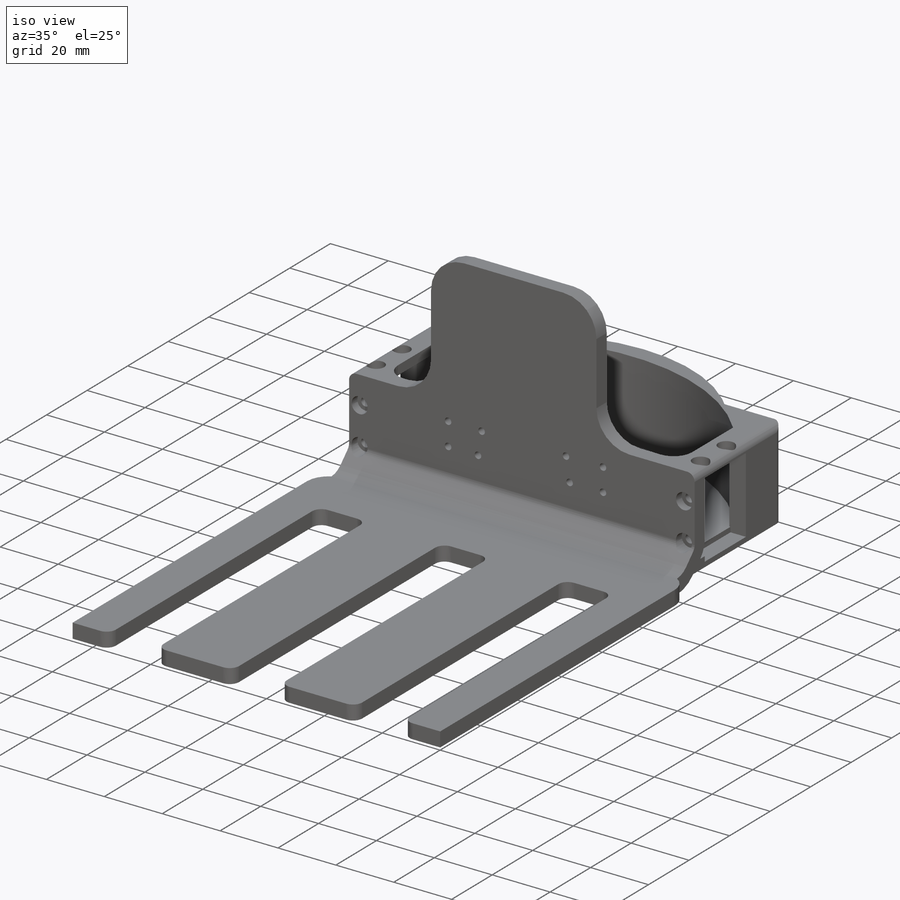
[diagram: iso view]
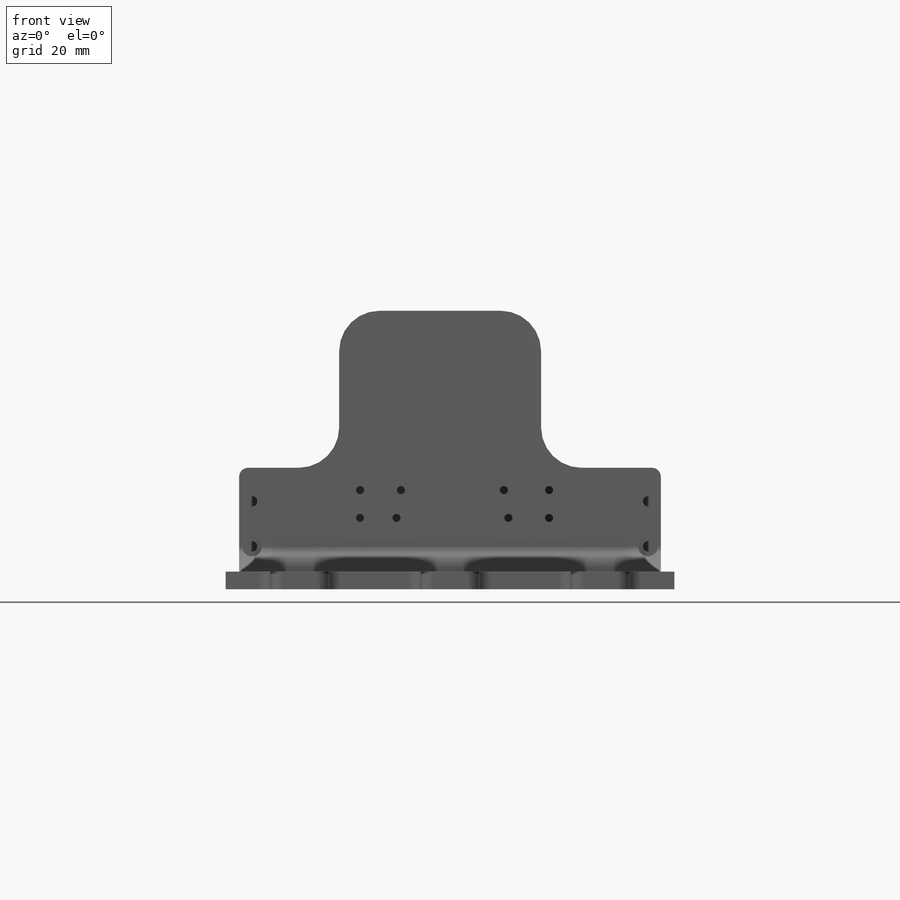
[diagram: front view]
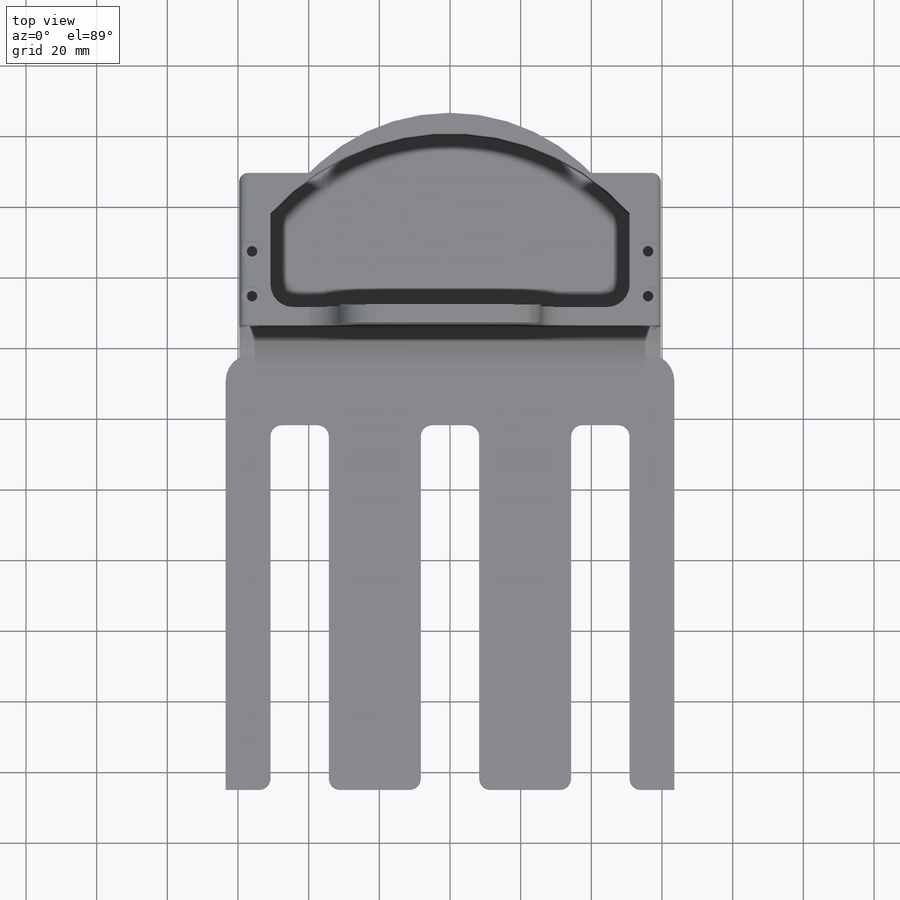
[diagram: top view]
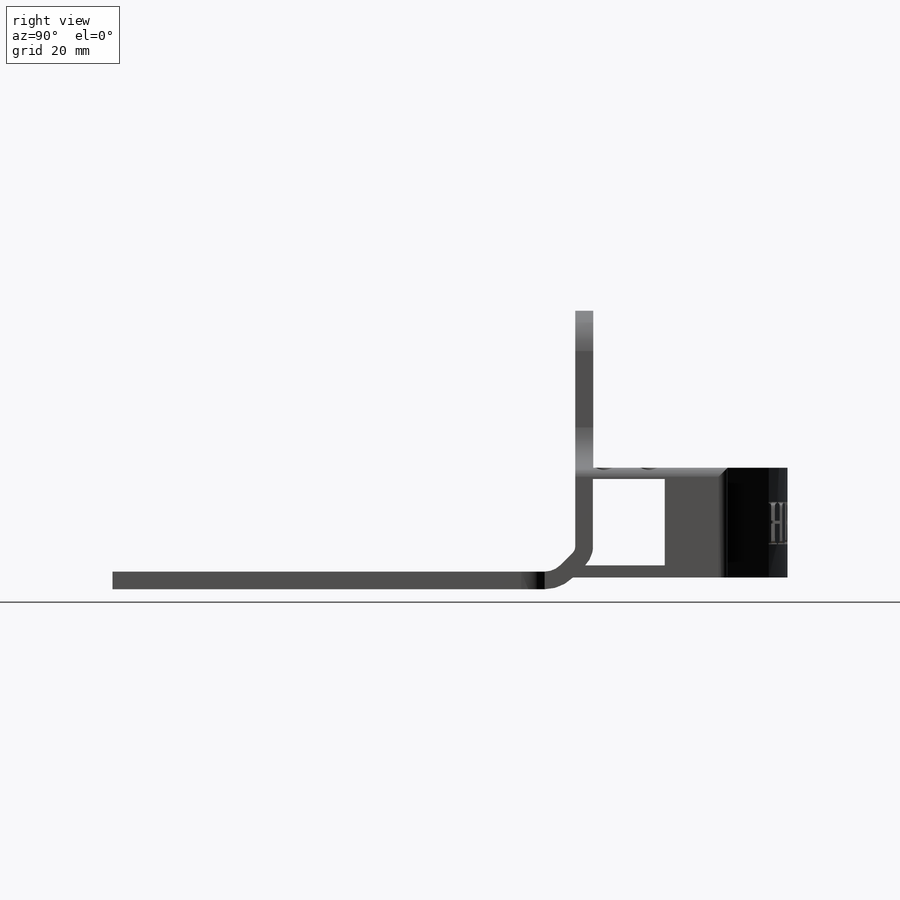
[diagram: right view]
SOLIDWORKS PART (.sldprt)
format: sldprt  version: not decoded by parser v0  size: 1,866,240 bytes
history: native  units: mm
features: sketch x78, cut_extrude x31, sheet_metal_op x27, extrude x8, fillet x6, mirror x5, hole x4, chamfer x2, material x1 + 50 further entries (+13 scaffold rows collapsed; 25 parser-record rows omitted)
feature tree (250):
  scaffold x13  (default folders/planes/origin — collapsed)
  material  "Material <not specified>"
  sketch  "Sketch1"  dims[c1.D1=127.0mm c1.D2=12.7mm c1.D3=25.4mm c1.D4=~8.980256mm c2.D1=6.35mm c2.D2=0.5 c2.D3=6.35mm c2.D6=500.0mm]
  sheet_metal_op  "Base-Flange1"
  sheet_metal_op  "BaseBend2"
  sketch  "Sketch10"  dims[D1=6.35mm D2=6.35mm D3=50.8mm D4=50.8mm]
  cut_extrude  "Cut-Extrude2"  [1 undecoded]
  fillet  "Fillet1"  Radius=7.62mm
  fillet  "Fillet2"  Radius=7.62mm
  sketch  "Sketch11"  dims[D1=16.51mm D2=19.05mm D3=8.255mm D4=16.51mm D5=12.7mm]
  cut_extrude  "Cut-Extrude3"  [1 undecoded]
  fillet  "Fillet3"  Radius=3.175mm
  hole  "CBORE for #4 Socket Head Cap Screw1"  Diameter=2.2606mm Depth=11.331628mm
  sketch  "Sketch12"  dims[D1=6.35mm D2=6.35mm D3=6.35mm D4=6.35mm D5=6.35mm D6=6.35mm D7=6.35mm D8=6.35mm D9=6.35mm D10=6.35mm D11=6.35mm D12=6.35mm]
  sketch  "Sketch13"  dims[Thru Hole Dia.=2.2606mm Thru Hole Depth=~11.331628mm C'Bore Dia.=~5.55752mm C'Bore Depth=2.8448mm]
  sketch  "Sketch14"  dims[D1=3.175mm]
  extrude  "Boss-Extrude1"  Depth=38.1mm
  fillet  "Fillet4"  Radius=3.81mm
  sketch  "Sketch16"
  extrude  "Boss-Extrude3"  [1 undecoded]
  sketch  "Sketch15"  dims[D1=26.162mm D2=20.32mm]
  cut_extrude  "Cut-Extrude5"  Depth=5.334mm
  mirror  "Mirror1"
  sketch  "Sketch18"  dims[D1=11.43mm]
  extrude  "Boss-Extrude4"  Depth=6.35mm
  sketch  "Sketch19"
  extrude  "Boss-Extrude5"  [1 undecoded]
  mirror  "Mirror2"
  fillet  "Fillet5"  Radius=1.27mm
  sketch  "Sketch20"  dims[c1.D4=6.35mm c1.D1=6.35mm c1.D2=6.35mm c1.D3=5.08mm c2.D4=6.35mm c2.D3=5.08mm]
  cut_extrude  "Cut-Extrude6"  Depth=13.462mm
  sketch  "Sketch22"
  cut_extrude  "Cut-Extrude8"  [1 undecoded]
  sketch  "Sketch23"
  extrude  "Boss-Extrude7"  [1 undecoded]
  sketch  "Sketch24"
  extrude  "Boss-Extrude8"  [1 undecoded]
  sketch  "Sketch25"  dims[D1=44.45mm D2=57.15mm D3=28.321mm]
  extrude  "Boss-Extrude9"  [1 undecoded]
  fillet  "Fillet7"  Radius=11.43mm
  sketch  "Sketch26"  dims[D1=3.175mm]
  sketch  "Sketch33"
  extrude  "Boss-Extrude10"  Depth=1.5875mm
  mirror  "Mirror5"
  hole  "CBORE for #4 Socket Head Cap Screw2"  Diameter=2.9464mm Depth=5.08mm
  sketch  "Sketch27"
  sketch  "Sketch28"  dims[Hole Dia.=2.9464mm Hole Depth=5.08mm C'Bore Dia.=~5.55752mm C'Bore Depth=2.8448mm Drill Angle=118.0deg]
  sketch  "Sketch29"
  cut_extrude  "Cut-Extrude9"  Depth=7.366mm
  hole  "CBORE for #4 Socket Head Cap Screw3"  Diameter=2.9464mm Depth=5.08mm
  sketch  "Sketch30"
  sketch  "Sketch31"  dims[Hole Dia.=2.9464mm Hole Depth=5.08mm C'Bore Dia.=~5.55752mm C'Bore Depth=1.651mm Drill Angle=118.0deg]
  mirror  "Mirror3"
  mirror  "Mirror4"
  chamfer  "Chamfer1"  Distance=1.524mm Angle=45deg
  chamfer  "Chamfer2"  Distance=1.524mm Angle=45deg
  sketch  "Sketch34"  dims[D1=~16.984682mm]
  cut_extrude  "Cut-Extrude10"  [1 undecoded]
  sketch  "Sketch35"  dims[c1.D1=3.81mm c2.D1=7.62mm]
  hole  "Tap Drill for #4-40 Tap1"  Diameter=2.2606mm Depth=12.7mm
  sketch  "Sketch37"  dims[D1=3.175mm D2=3.175mm D3=3.175mm D4=3.175mm]
  sketch  "Sketch36"  dims[hole-wizard template sketch: 47 standard entries collapsed; hole parameters kept: c15.Hole Depth=12.7mm c15.D3=~14.816244mm c15.Drill Angle=118.0deg]
  sketch  "Bend-Lines1"
  sketch  "Bounding-Box1"
  sheet_metal_op  "Sheet-Metal1"
  "Flat-Pattern1"
  sketch  "Bend-Lines2"
  sketch  "Bounding-Box2"
  "Flatten-<BaseBend2>1"
  parser-record x25  (decoder bookkeeping rows leaked as tree rows — omitted from the tree; the rows remain in map.json)
  cut_extrude  "Sheet-Metal3"  Depth=6.35mm
  sheet_metal_op  "Flat-Pattern1"
  sketch  "Bend-Lines2"
  sketch  "Bounding-Box2"
  "Flatten-<BaseBend1>1"
  "Flatten-<BaseBend2>1"
  cut_extrude  "Sheet-Metal4"  Depth=6.35mm
  sheet_metal_op  "Flat-Pattern1"
  sketch  "Bend-Lines2"
  sketch  "Bounding-Box2"
  "Flatten-<BaseBend1>1"
  "Flatten-<BaseBend2>1"
  cut_extrude  "Sheet-Metal5"  Depth=6.35mm
  sheet_metal_op  "Flat-Pattern1"
  sketch  "Bend-Lines2"
  sketch  "Bounding-Box2"
  "Flatten-<BaseBend1>1"
  "Flatten-<BaseBend2>1"
  cut_extrude  "Sheet-Metal6"  Depth=6.35mm
  sheet_metal_op  "Flat-Pattern1"
  sketch  "Bend-Lines2"
  sketch  "Bounding-Box2"
  "Flatten-<BaseBend1>1"
  "Flatten-<BaseBend2>1"
  cut_extrude  "Sheet-Metal7"  Depth=6.35mm
  sheet_metal_op  "Flat-Pattern1"
  sketch  "Bend-Lines2"
  sketch  "Bounding-Box2"
  "Flatten-<BaseBend1>1"
  "Flatten-<BaseBend2>1"
  cut_extrude  "Sheet-Metal8"  Depth=6.35mm
  sheet_metal_op  "Flat-Pattern1"
  sketch  "Bend-Lines2"
  sketch  "Bounding-Box2"
  "Flatten-<BaseBend1>1"
  "Flatten-<BaseBend2>1"
  cut_extrude  "Sheet-Metal10"  Depth=6.35mm
  sheet_metal_op  "Flat-Pattern1"
  sketch  "Bend-Lines2"
  sketch  "Bounding-Box2"
  "Flatten-<BaseBend1>1"
  "Flatten-<BaseBend2>1"
  cut_extrude  "Sheet-Metal11"  Depth=6.35mm
  sheet_metal_op  "Flat-Pattern1"
  sketch  "Bend-Lines2"
  sketch  "Bounding-Box2"
  "Flatten-<BaseBend1>1"
  "Flatten-<BaseBend2>1"
  cut_extrude  "Sheet-Metal12"  Depth=6.35mm
  sheet_metal_op  "Flat-Pattern1"
  sketch  "Bend-Lines2"
  sketch  "Bounding-Box2"
  "Flatten-<BaseBend1>1"
  "Flatten-<BaseBend2>1"
  cut_extrude  "Sheet-Metal13"  Depth=6.35mm
  sheet_metal_op  "Flat-Pattern1"
  sketch  "Bend-Lines2"
  sketch  "Bounding-Box2"
  "Flatten-<BaseBend1>1"
  "Flatten-<BaseBend2>1"
  cut_extrude  "Sheet-Metal14"  Depth=6.35mm
  sheet_metal_op  "Flat-Pattern1"
  sketch  "Bend-Lines2"
  sketch  "Bounding-Box2"
  "Flatten-<BaseBend1>1"
  "Flatten-<BaseBend2>1"
  cut_extrude  "Sheet-Metal16"  Depth=6.35mm
  sheet_metal_op  "Flat-Pattern1"
  sketch  "Bend-Lines2"
  sketch  "Bounding-Box2"
  "Flatten-<BaseBend1>1"
  "Flatten-<BaseBend2>1"
  cut_extrude  "Sheet-Metal17"  Depth=6.35mm
  sheet_metal_op  "Flat-Pattern1"
  sketch  "Bend-Lines2"
  sketch  "Bounding-Box2"
  "Flatten-<BaseBend1>1"
  "Flatten-<BaseBend2>1"
  cut_extrude  "Sheet-Metal18"  Depth=6.35mm
  sheet_metal_op  "Flat-Pattern1"
  sketch  "Bend-Lines2"
  sketch  "Bounding-Box2"
  "Flatten-<BaseBend1>1"
  "Flatten-<BaseBend2>1"
  cut_extrude  "Sheet-Metal19"  Depth=6.35mm
  sheet_metal_op  "Flat-Pattern1"
  sketch  "Bend-Lines2"
  sketch  "Bounding-Box2"
  "Flatten-<BaseBend1>1"
  "Flatten-<BaseBend2>1"
  cut_extrude  "Sheet-Metal20"  Depth=6.35mm
  sheet_metal_op  "Flat-Pattern1"
  sketch  "Bend-Lines2"
  sketch  "Bounding-Box2"
  "Flatten-<BaseBend1>1"
  "Flatten-<BaseBend2>1"
  cut_extrude  "Sheet-Metal21"  Depth=6.35mm
  sheet_metal_op  "Flat-Pattern1"
  sketch  "Bend-Lines2"
  sketch  "Bounding-Box2"
  "Flatten-<BaseBend1>1"
  "Flatten-<BaseBend2>1"
  cut_extrude  "Sheet-Metal22"  Depth=6.35mm
  sheet_metal_op  "Flat-Pattern1"
  sketch  "Bend-Lines2"
  sketch  "Bounding-Box2"
  "Flatten-<BaseBend1>1"
  "Flatten-<BaseBend2>1"
  cut_extrude  "Sheet-Metal23"  Depth=6.35mm
  sheet_metal_op  "Flat-Pattern1"
  sketch  "Bend-Lines2"
  sketch  "Bounding-Box2"
  "Flatten-<BaseBend1>1"
  "Flatten-<BaseBend2>1"
  cut_extrude  "Sheet-Metal24"  Depth=6.35mm
  sheet_metal_op  "Flat-Pattern1"
  sketch  "Bend-Lines2"
  sketch  "Bounding-Box2"
  "Flatten-<BaseBend1>1"
  "Flatten-<BaseBend2>1"
  cut_extrude  "Sheet-Metal25"  Depth=6.35mm
  sheet_metal_op  "Flat-Pattern1"
  sketch  "Bend-Lines2"
  sketch  "Bounding-Box2"
  "Flatten-<BaseBend1>1"
  "Flatten-<BaseBend2>1"
  cut_extrude  "Sheet-Metal26"  Depth=6.35mm
  sheet_metal_op  "Flat-Pattern1"
  sketch  "Bend-Lines2"
  sketch  "Bounding-Box2"
  "Flatten-<BaseBend1>1"
  "Flatten-<BaseBend2>1"
  cut_extrude  "Sheet-Metal27"  Depth=6.35mm
  sheet_metal_op  "Flat-Pattern1"
  sketch  "Bend-Lines2"
  sketch  "Bounding-Box2"
  "Flatten-<BaseBend1>1"
  "Flatten-<BaseBend2>1"
  cut_extrude  "Sheet-Metal28"  Depth=6.35mm
  sheet_metal_op  "Flat-Pattern1"
  sketch  "Bend-Lines2"
  sketch  "Bounding-Box2"
  "Flatten-<BaseBend1>1"
  "Flatten-<BaseBend2>1"
decode coverage: 59 of 161 modeling features carry decoded parameters; 50 rows unclassified (native names shown)
note: ~ marks probable driven/reference dimensions
note: 9 parameter values undecoded
summary: no parameter record found for 9 features; Diameter pulled from absorbed wizard sketch
note: suppression state not decoded; provenance and decode notes live in map.json
